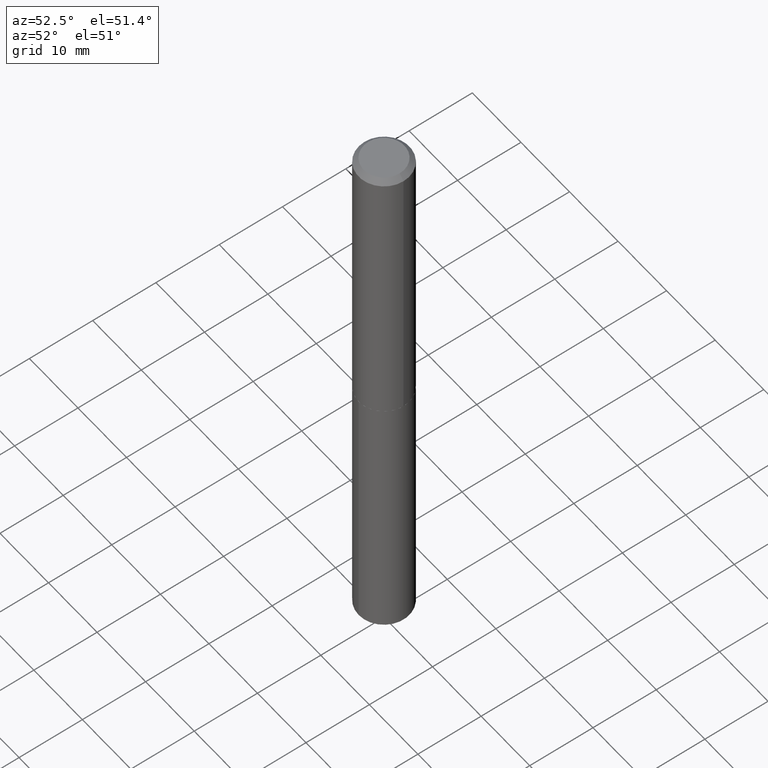
[diagram: clean part render]
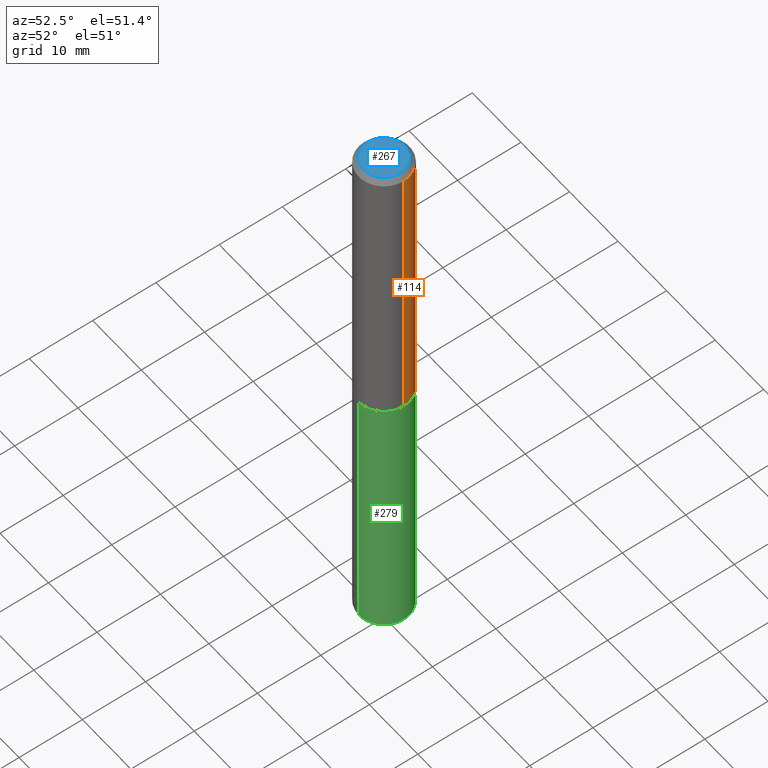
[diagram: same view with three faces highlighted in distinct colors, each labeled with its STEP entity id]
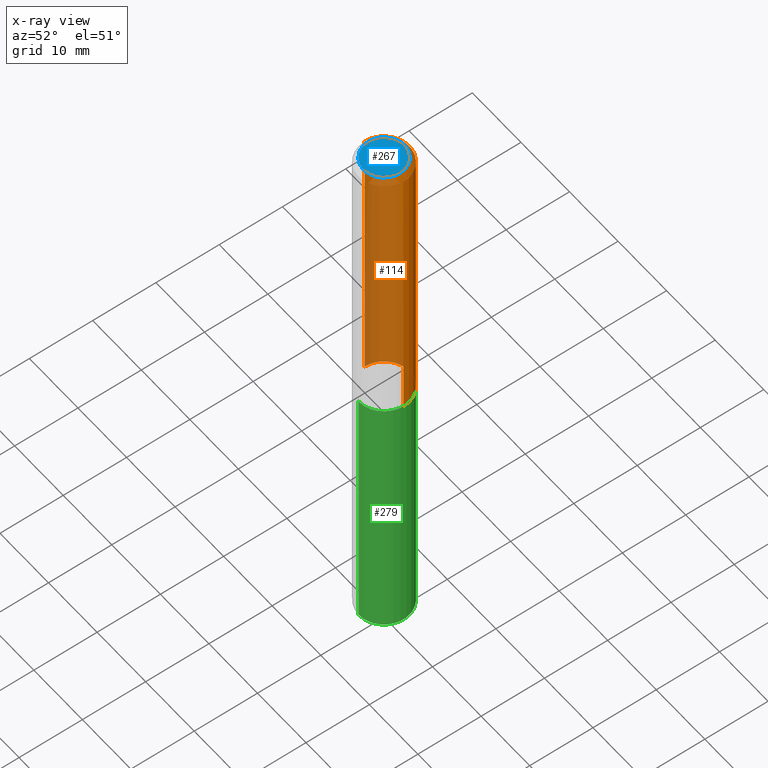
[diagram: x-ray of the same camera — body ghosted, the three highlighted faces saturated]
A machine part, auxiliary view with three faces highlighted in distinct colors.
The next image is the same camera in x-ray (body ghosted, the three faces saturated) — at least one of them is partly hidden behind the body in this view.
Their STEP definitions:

[orange] entity #114 — the highlighted cylindrical surface (edge-blend (fillet) strip) has radius 4.0005 mm, axis along (-0, 0, 1).
#9 = CARTESIAN_POINT ( 'NONE',  ( -0.1575000000000000011, -2.096287643151965949E-15, -0.03125000000000020123 ) ) ;
#11 = LINE ( 'NONE', #349, #48 ) ;
#44 = CARTESIAN_POINT ( 'NONE',  ( -0.1575000000000000844, 1.119104808822158392E-15, -7.747322767151481189E-30 ) ) ;
#48 = VECTOR ( 'NONE', #52, 39.37007874015748143 ) ;
#51 = EDGE_CURVE ( 'NONE', #92, #65, #82, .T. ) ;
#52 = DIRECTION ( 'NONE',  ( -2.445468806185136877E-29, 3.491481338843145188E-15, 1.000000000000000000 ) ) ;
#53 = ORIENTED_EDGE ( 'NONE', *, *, #59, .F. ) ;
#59 = EDGE_CURVE ( 'NONE', #260, #65, #266, .T. ) ;
#65 = VERTEX_POINT ( 'NONE', #9 ) ;
#73 = CARTESIAN_POINT ( 'NONE',  ( 4.427765820478809342E-29, -6.321676112109400370E-15, -1.810600000000000431 ) ) ;
#77 = CARTESIAN_POINT ( 'NONE',  ( 0.1575000000000000011, -1.208925413574435989E-15, -0.03125000000000020123 ) ) ;
#79 = DIRECTION ( 'NONE',  ( 1.000000000000000000, -6.982962677686265922E-15, 0.000000000000000000 ) ) ;
#82 = LINE ( 'NONE', #44, #285 ) ;
#92 = VERTEX_POINT ( 'NONE', #343 ) ;
#103 = ORIENTED_EDGE ( 'NONE', *, *, #293, .F. ) ;
#104 = DIRECTION ( 'NONE',  ( -2.445468806185136597E-29, 3.491481338843145583E-15, 1.000000000000000000 ) ) ;
#114 = ADVANCED_FACE ( 'NONE', ( #290 ), #123, .T. ) ;
#123 = CYLINDRICAL_SURFACE ( 'NONE', #211, 0.1575000000000000844 ) ;
#143 = DIRECTION ( 'NONE',  ( -2.445468806185136597E-29, 3.491481338843145583E-15, 1.000000000000000000 ) ) ;
#145 = ORIENTED_EDGE ( 'NONE', *, *, #51, .T. ) ;
#150 = EDGE_LOOP ( 'NONE', ( #209, #145, #53, #103 ) ) ;
#209 = ORIENTED_EDGE ( 'NONE', *, *, #356, .T. ) ;
#211 = AXIS2_PLACEMENT_3D ( 'NONE', #375, #143, #261 ) ;
#221 = DIRECTION ( 'NONE',  ( -2.445468806185136877E-29, 3.491481338843145188E-15, 1.000000000000000000 ) ) ;
#225 = CARTESIAN_POINT ( 'NONE',  ( 7.642090019328601786E-31, -1.091087918388490144E-16, -0.03125000000000020123 ) ) ;
#234 = CIRCLE ( 'NONE', #312, 0.1575000000000001954 ) ;
#260 = VERTEX_POINT ( 'NONE', #77 ) ;
#261 = DIRECTION ( 'NONE',  ( 1.000000000000000000, -6.982962677686267499E-15, 4.876176775795936353E-29 ) ) ;
#266 = CIRCLE ( 'NONE', #379, 0.1575000000000000011 ) ;
#272 = VERTEX_POINT ( 'NONE', #319 ) ;
#282 = DIRECTION ( 'NONE',  ( 1.000000000000000000, -6.982962677686265922E-15, 0.000000000000000000 ) ) ;
#285 = VECTOR ( 'NONE', #221, 39.37007874015748143 ) ;
#290 = FACE_OUTER_BOUND ( 'NONE', #150, .T. ) ;
#293 = EDGE_CURVE ( 'NONE', #272, #260, #11, .T. ) ;
#312 = AXIS2_PLACEMENT_3D ( 'NONE', #73, #104, #282 ) ;
#319 = CARTESIAN_POINT ( 'NONE',  ( 0.1575000000000001954, -7.421492733844987850E-15, -1.810600000000000431 ) ) ;
#343 = CARTESIAN_POINT ( 'NONE',  ( -0.1575000000000001954, -5.202571303287241189E-15, -1.810600000000000431 ) ) ;
#349 = CARTESIAN_POINT ( 'NONE',  ( 0.1575000000000000844, -1.099816621735587677E-15, 7.679978421878603638E-30 ) ) ;
#356 = EDGE_CURVE ( 'NONE', #272, #92, #234, .T. ) ;
#375 = CARTESIAN_POINT ( 'NONE',  ( 0.000000000000000000, 0.000000000000000000, 0.000000000000000000 ) ) ;
#379 = AXIS2_PLACEMENT_3D ( 'NONE', #225, #389, #79 ) ;
#389 = DIRECTION ( 'NONE',  ( -2.445468806185136597E-29, 3.491481338843145583E-15, 1.000000000000000000 ) ) ;

[blue] entity #267 — the highlighted planar face has unit normal (0, -0, -1).
#10 = DIRECTION ( 'NONE',  ( 1.000000000000000000, -6.982962677686267499E-15, 4.876009584780190244E-29 ) ) ;
#34 = VERTEX_POINT ( 'NONE', #366 ) ;
#36 = ORIENTED_EDGE ( 'NONE', *, *, #333, .T. ) ;
#37 = CARTESIAN_POINT ( 'NONE',  ( -1.179965205088274384E-46, 1.684677589683407292E-32, 4.825108388640570813E-18 ) ) ;
#38 = CIRCLE ( 'NONE', #256, 0.1262499999999999734 ) ;
#54 = AXIS2_PLACEMENT_3D ( 'NONE', #194, #337, #10 ) ;
#58 = PLANE ( 'NONE',  #69 ) ;
#69 = AXIS2_PLACEMENT_3D ( 'NONE', #140, #200, #345 ) ;
#140 = CARTESIAN_POINT ( 'NONE',  ( -5.899826025441371921E-47, 8.423387948417036461E-33, 2.412554194320285406E-18 ) ) ;
#161 = DIRECTION ( 'NONE',  ( -2.445468806185136597E-29, 3.491481338843145583E-15, 1.000000000000000000 ) ) ;
#186 = CARTESIAN_POINT ( 'NONE',  ( -0.1262499999999999734, 9.361534339773144209E-16, 4.825108388634215244E-18 ) ) ;
#194 = CARTESIAN_POINT ( 'NONE',  ( -1.179965205088274384E-46, 1.684677589683407292E-32, 4.825108388640570813E-18 ) ) ;
#200 = DIRECTION ( 'NONE',  ( 2.438088387897960049E-29, -3.491481338843145188E-15, -1.000000000000000000 ) ) ;
#256 = AXIS2_PLACEMENT_3D ( 'NONE', #37, #161, #334 ) ;
#258 = EDGE_CURVE ( 'NONE', #380, #34, #368, .T. ) ;
#267 = ADVANCED_FACE ( 'NONE', ( #335 ), #58, .F. ) ;
#324 = ORIENTED_EDGE ( 'NONE', *, *, #258, .T. ) ;
#333 = EDGE_CURVE ( 'NONE', #34, #380, #38, .T. ) ;
#334 = DIRECTION ( 'NONE',  ( 1.000000000000000000, -6.982962677686267499E-15, 4.876009584780190244E-29 ) ) ;
#335 = FACE_OUTER_BOUND ( 'NONE', #350, .T. ) ;
#337 = DIRECTION ( 'NONE',  ( -2.445468806185136597E-29, 3.491481338843145583E-15, 1.000000000000000000 ) ) ;
#345 = DIRECTION ( 'NONE',  ( -1.000000000000000000, 6.982962677686265922E-15, -4.876176775795935793E-29 ) ) ;
#350 = EDGE_LOOP ( 'NONE', ( #324, #36 ) ) ;
#366 = CARTESIAN_POINT ( 'NONE',  ( 0.1262499999999999734, -1.027887549353260543E-15, 4.825108388647246856E-18 ) ) ;
#368 = CIRCLE ( 'NONE', #54, 0.1262499999999999734 ) ;
#380 = VERTEX_POINT ( 'NONE', #186 ) ;

[green] entity #279 — the highlighted cylindrical surface (edge-blend (fillet) strip) has radius 4.0005 mm, axis along (-0, 0, 1).
#5 = AXIS2_PLACEMENT_3D ( 'NONE', #166, #88, #289 ) ;
#27 = VERTEX_POINT ( 'NONE', #315 ) ;
#31 = VECTOR ( 'NONE', #159, 39.37007874015748143 ) ;
#46 = CARTESIAN_POINT ( 'NONE',  ( 1.119104808822201977E-15, 0.1574999999999936728, -1.811100000000000820 ) ) ;
#61 = CIRCLE ( 'NONE', #292, 0.1575000000000000011 ) ;
#70 = CARTESIAN_POINT ( 'NONE',  ( -1.099816621735542318E-15, -0.1575000000000063016, -1.811099999999999710 ) ) ;
#83 = DIRECTION ( 'NONE',  ( -2.446502348111579145E-29, 3.490001247978926610E-15, 1.000000000000000000 ) ) ;
#88 = DIRECTION ( 'NONE',  ( -2.446502348111579145E-29, 3.490001247978926610E-15, 1.000000000000000000 ) ) ;
#89 = ORIENTED_EDGE ( 'NONE', *, *, #347, .F. ) ;
#110 = LINE ( 'NONE', #223, #31 ) ;
#113 = CARTESIAN_POINT ( 'NONE',  ( 4.428988554881901583E-29, -6.323421852778821873E-15, -1.811100000000000154 ) ) ;
#116 = FACE_OUTER_BOUND ( 'NONE', #354, .T. ) ;
#129 = VERTEX_POINT ( 'NONE', #300 ) ;
#133 = VERTEX_POINT ( 'NONE', #70 ) ;
#134 = CARTESIAN_POINT ( 'NONE',  ( 8.558331646037396296E-29, -1.221404057733872475E-14, -3.498955764513318023 ) ) ;
#139 = CIRCLE ( 'NONE', #155, 0.1575000000000000011 ) ;
#155 = AXIS2_PLACEMENT_3D ( 'NONE', #134, #83, #196 ) ;
#159 = DIRECTION ( 'NONE',  ( -2.446502348111579425E-29, 3.490001247978926610E-15, 1.000000000000000000 ) ) ;
#166 = CARTESIAN_POINT ( 'NONE',  ( 4.428988554881901583E-29, -6.323421852778821873E-15, -1.811100000000000154 ) ) ;
#168 = DIRECTION ( 'NONE',  ( -6.982962677686264344E-15, -1.000000000000000000, 3.469013325287953293E-15 ) ) ;
#176 = ORIENTED_EDGE ( 'NONE', *, *, #240, .T. ) ;
#184 = CARTESIAN_POINT ( 'NONE',  ( 1.119104808822243392E-15, 0.1574999999999936728, -1.811100000000000820 ) ) ;
#195 = EDGE_CURVE ( 'NONE', #27, #129, #139, .T. ) ;
#196 = DIRECTION ( 'NONE',  ( -6.982962677686264344E-15, -1.000000000000000000, 3.469013325287953293E-15 ) ) ;
#222 = DIRECTION ( 'NONE',  ( -2.446502348111579425E-29, 3.490001247978926610E-15, 1.000000000000000000 ) ) ;
#223 = CARTESIAN_POINT ( 'NONE',  ( -1.099816621735542318E-15, -0.1575000000000063016, -1.811099999999999710 ) ) ;
#231 = DIRECTION ( 'NONE',  ( -2.446502348111579145E-29, 3.490001247978926610E-15, 1.000000000000000000 ) ) ;
#238 = VECTOR ( 'NONE', #222, 39.37007874015748143 ) ;
#240 = EDGE_CURVE ( 'NONE', #129, #321, #288, .T. ) ;
#254 = CYLINDRICAL_SURFACE ( 'NONE', #5, 0.1575000000000000011 ) ;
#279 = ADVANCED_FACE ( 'NONE', ( #116 ), #254, .T. ) ;
#288 = LINE ( 'NONE', #46, #238 ) ;
#289 = DIRECTION ( 'NONE',  ( -6.982962677686264344E-15, -1.000000000000000000, 3.469013325287953293E-15 ) ) ;
#292 = AXIS2_PLACEMENT_3D ( 'NONE', #113, #231, #168 ) ;
#299 = ORIENTED_EDGE ( 'NONE', *, *, #308, .F. ) ;
#300 = CARTESIAN_POINT ( 'NONE',  ( 1.119104808822243392E-15, 0.1574999999999877887, -3.498955764513318467 ) ) ;
#308 = EDGE_CURVE ( 'NONE', #133, #321, #61, .T. ) ;
#315 = CARTESIAN_POINT ( 'NONE',  ( -1.099816621735501297E-15, -0.1575000000000122413, -3.498955764513317135 ) ) ;
#321 = VERTEX_POINT ( 'NONE', #184 ) ;
#347 = EDGE_CURVE ( 'NONE', #27, #133, #110, .T. ) ;
#352 = ORIENTED_EDGE ( 'NONE', *, *, #195, .T. ) ;
#354 = EDGE_LOOP ( 'NONE', ( #352, #176, #299, #89 ) ) ;